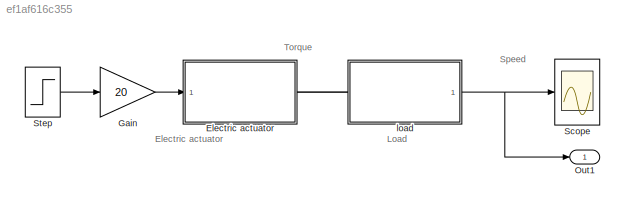
MODEL slx_ef1af616c355
KIND model
CONFIG AbsTol = auto
CONFIG EnableMultiTasking = off
CONFIG FixedStep = auto
CONFIG MaxStep = auto
CONFIG MinStep = auto
CONFIG RelTol = 1e-3
CONFIG SampleTimeConstraint = Unconstrained
CONFIG SolverName = VariableStepAuto
CONFIG StartTime = 0.0
CONFIG StopTime = 0.3
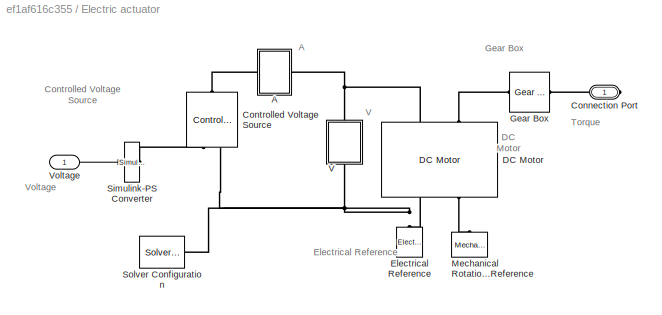
BLOCK [SubSystem] Electric actuator
  Ports = [1, 0, 0, 0, 0, 0, 1]
  RequestExecContextInheritance = off
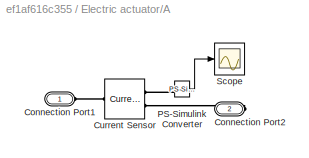
BLOCK [SubSystem] Electric actuator/A
  Ports = [0, 0, 0, 0, 0, 1, 1]
  RequestExecContextInheritance = off
  Tag = A
BLOCK [PMIOPort] Electric actuator/A/Connection Port1
  Side = Left
BLOCK [PMIOPort] Electric actuator/A/Connection Port2
  NameLocation = top
  Port = 2
  Side = Right
BLOCK [Reference] Electric actuator/A/Current Sensor  REF=fl_lib/Electrical/Electrical Sensors/Current Sensor
  Ports = [0, 0, 0, 0, 0, 1, 2]
  SourceBlock = fl_lib/Electrical/Electrical Sensors/Current Sensor
  SourceProductBaseCode = SS
  SourceType = Current Sensor
BLOCK [Reference] Electric actuator/A/PS-Simulink Converter  REF=nesl_utility/PS-Simulink
Converter
  Ports = [0, 1, 0, 0, 0, 1]
  SourceBlock = nesl_utility/PS-Simulink\nConverter
  SourceProductBaseCode = PW,SS
  SourceType = PS-Simulink\nConverter
BLOCK [Scope] Electric actuator/A/Scope
  Floating = off
  NumInputPorts = 1
  Ports = [1]
  ScopeSpecificationString = Simulink.scopes.TimeScopeBlockCfg('CurrentConfiguration', extmgr.ConfigurationSet(extmgr.Configuration('Core','General UI',true),extmgr.Configuration('Core','Source UI',true),extmgr.Configuration('Sources','WiredSimulink',true),extmgr.Configuration('Visuals','Time Domain',true,'SerializedDisplays',{struct('MinYLimReal','-0.28106','MaxYLimReal','2.49428','YLabelReal','','MinYLimMag','0.00000','MaxY...<+1412ch>
BLOCK [PMIOPort] Electric actuator/Connection Port
  NameLocation = top
  Side = Right
BLOCK [Reference] Electric actuator/Controlled Voltage Source  REF=fl_lib/Electrical/Electrical Sources/Controlled Voltage
Source
  NameLocation = right
  Ports = [0, 0, 0, 0, 0, 1, 2]
  SourceBlock = fl_lib/Electrical/Electrical Sources/Controlled Voltage\nSource
  SourceProductBaseCode = SS
  SourceType = Controlled Voltage\nSource
BLOCK [Reference] Electric actuator/DC Motor  REF=ee_lib/Electromechanical/Brushed Motors/DC Motor
  NameLocation = right
  Ports = [0, 0, 0, 0, 0, 2, 2]
  SourceBlock = ee_lib/Electromechanical/Brushed Motors/DC Motor
  SourceProductBaseCode = PS
  SourceType = DC Motor
BLOCK [Reference] Electric actuator/Electrical Reference  REF=fl_lib/Electrical/Electrical Elements/Electrical Reference
  NameLocation = right
  Ports = [0, 0, 0, 0, 0, 1]
  SourceBlock = fl_lib/Electrical/Electrical Elements/Electrical Reference
  SourceProductBaseCode = SS
  SourceType = Electrical Reference
BLOCK [Reference] Electric actuator/Gear Box  REF=fl_lib/Mechanical/Mechanisms/Gear Box
  Ports = [0, 0, 0, 0, 0, 1, 1]
  SourceBlock = fl_lib/Mechanical/Mechanisms/Gear Box
  SourceProductBaseCode = SS
  SourceType = Gear Box
BLOCK [Reference] Electric actuator/Mechanical Rotational Reference  REF=fl_lib/Mechanical/Rotational Elements/Mechanical
Rotational Reference
  NameLocation = right
  Ports = [0, 0, 0, 0, 0, 1]
  SourceBlock = fl_lib/Mechanical/Rotational Elements/Mechanical\nRotational Reference
  SourceProductBaseCode = SS
  SourceType = Mechanical\nRotational Reference
BLOCK [Reference] Electric actuator/Simulink-PS Converter  REF=nesl_utility/Simulink-PS
Converter
  Ports = [1, 0, 0, 0, 0, 0, 1]
  SourceBlock = nesl_utility/Simulink-PS\nConverter
  SourceProductBaseCode = PW,SS
  SourceType = Simulink-PS\nConverter
BLOCK [Reference] Electric actuator/Solver Configuration  REF=nesl_utility/Solver
Configuration
  Ports = [0, 0, 0, 0, 0, 0, 1]
  SourceBlock = nesl_utility/Solver\nConfiguration
  SourceProductBaseCode = PW,SS
  SourceType = Solver\nConfiguration
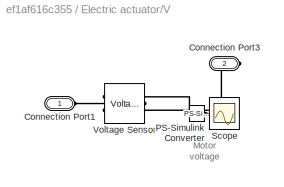
BLOCK [SubSystem] Electric actuator/V
  NameLocation = left
  Ports = [0, 0, 0, 0, 0, 1, 1]
  RequestExecContextInheritance = off
BLOCK [PMIOPort] Electric actuator/V/Connection Port1
  Side = Left
BLOCK [PMIOPort] Electric actuator/V/Connection Port3
  NameLocation = top
  Port = 2
  Side = Right
BLOCK [Reference] Electric actuator/V/PS-Simulink Converter  REF=nesl_utility/PS-Simulink
Converter
  Ports = [0, 1, 0, 0, 0, 1]
  SourceBlock = nesl_utility/PS-Simulink\nConverter
  SourceProductBaseCode = PW,SS
  SourceType = PS-Simulink\nConverter
BLOCK [Scope] Electric actuator/V/Scope
  Floating = off
  NumInputPorts = 1
  Ports = [1]
  ScopeSpecificationString = Simulink.scopes.TimeScopeBlockCfg('CurrentConfiguration', extmgr.ConfigurationSet(extmgr.Configuration('Core','General UI',true),extmgr.Configuration('Core','Source UI',true),extmgr.Configuration('Sources','WiredSimulink',true,'DataLoggingVariableName','ScopeData1'),extmgr.Configuration('Visuals','Time Domain',true,'SerializedDisplays',{struct('MinYLimReal','10.00000','MaxYLimReal','30.00000','YLa...<+1440ch>
BLOCK [Reference] Electric actuator/V/Voltage Sensor  REF=fl_lib/Electrical/Electrical Sensors/Voltage Sensor
  NameLocation = top
  Ports = [0, 0, 0, 0, 0, 1, 2]
  SourceBlock = fl_lib/Electrical/Electrical Sensors/Voltage Sensor
  SourceProductBaseCode = SS
  SourceType = Voltage Sensor
BLOCK [Inport] Electric actuator/Voltage
BLOCK [Gain] Gain
  Gain = 20
BLOCK [Outport] Out1
BLOCK [Scope] Scope
  Floating = off
  NumInputPorts = 1
  Ports = [1]
  ScopeSpecificationString = Simulink.scopes.TimeScopeBlockCfg('CurrentConfiguration', extmgr.ConfigurationSet(extmgr.Configuration('Core','General UI',true,'FigureColor',[1 1 1]),extmgr.Configuration('Core','Source UI',true),extmgr.Configuration('Sources','WiredSimulink',true,'DataLoggingVariableName','ScopeData1'),extmgr.Configuration('Visuals','Time Domain',true,'SerializedDisplays',{struct('MinYLimReal','-7.80414','MaxYLi...<+1543ch>
BLOCK [Step] Step
  SampleTime = 0
  Time = 0
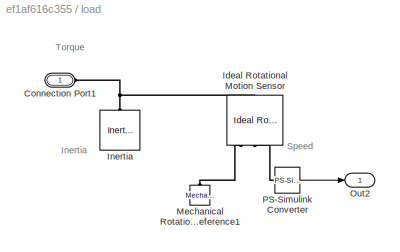
BLOCK [SubSystem] load
  Ports = [0, 1, 0, 0, 0, 1]
  RequestExecContextInheritance = off
BLOCK [PMIOPort] load/Connection Port1
  Side = Left
BLOCK [Reference] load/Ideal Rotational Motion Sensor  REF=fl_lib/Mechanical/Mechanical Sensors/Ideal Rotational
Motion Sensor
  NameLocation = left
  Ports = [0, 0, 0, 0, 0, 1, 3]
  SourceBlock = fl_lib/Mechanical/Mechanical Sensors/Ideal Rotational\nMotion Sensor
  SourceProductBaseCode = SS
  SourceType = Ideal Rotational\nMotion Sensor
BLOCK [Reference] load/Inertia  REF=fl_lib/Mechanical/Rotational Elements/Inertia
  NameLocation = right
  Ports = [0, 0, 0, 0, 0, 1]
  SourceBlock = fl_lib/Mechanical/Rotational Elements/Inertia
  SourceProductBaseCode = SS
  SourceType = Inertia
BLOCK [Reference] load/Mechanical Rotational Reference1  REF=fl_lib/Mechanical/Rotational Elements/Mechanical
Rotational Reference
  Ports = [0, 0, 0, 0, 0, 1]
  SourceBlock = fl_lib/Mechanical/Rotational Elements/Mechanical\nRotational Reference
  SourceProductBaseCode = SS
  SourceType = Mechanical\nRotational Reference
BLOCK [Outport] load/Out2
  NameLocation = top
BLOCK [Reference] load/PS-Simulink Converter  REF=nesl_utility/PS-Simulink
Converter
  Ports = [0, 1, 0, 0, 0, 1]
  SourceBlock = nesl_utility/PS-Simulink\nConverter
  SourceProductBaseCode = PW,SS
  SourceType = PS-Simulink\nConverter
ANNOTATION (root): Load
ANNOTATION (root): Torque
ANNOTATION (root): Electric actuator
ANNOTATION (root): Speed
ANNOTATION Electric actuator: A
ANNOTATION Electric actuator: DC Motor
ANNOTATION Electric actuator: Controlled Voltage Source
ANNOTATION Electric actuator: Gear Box
ANNOTATION Electric actuator: Voltage
ANNOTATION Electric actuator: V
ANNOTATION Electric actuator: Electrical Reference
ANNOTATION Electric actuator: Torque
ANNOTATION Electric actuator/V: Motor voltage
ANNOTATION load: Speed
ANNOTATION load: Torque
ANNOTATION load: Inertia
LINE Electric actuator/A/PS-Simulink Converter:1 -> Electric actuator/A/Scope:1
LINE Electric actuator/V/PS-Simulink Converter:1 -> Electric actuator/V/Scope:1
LINE Electric actuator/Voltage:1 -> Electric actuator/Simulink-PS Converter:1
LINE Gain:1 -> Electric actuator:1
LINE Step:1 -> Gain:1
LINE load/PS-Simulink Converter:1 -> load/Out2:1
NET load:1 -> Out1:1, Scope:1
PLINE Electric actuator/A/Connection Port1:RConn1 -- Electric actuator/A/Current Sensor:LConn1
PLINE Electric actuator/A/Connection Port2:RConn1 -- Electric actuator/A/Current Sensor:RConn2
PLINE Electric actuator/A/Current Sensor:RConn1 -- Electric actuator/A/PS-Simulink Converter:LConn1
PLINE Electric actuator/A:LConn1 -- Electric actuator/Controlled Voltage Source:LConn1
PNET net1: Electric actuator/A:RConn1 -- Electric actuator/DC Motor:LConn1 -- Electric actuator/V:LConn1
PLINE Electric actuator/Connection Port:RConn1 -- Electric actuator/Gear Box:RConn1
PLINE Electric actuator/Controlled Voltage Source:RConn1 -- Electric actuator/Simulink-PS Converter:RConn1
PNET net2: Electric actuator/Controlled Voltage Source:RConn2 -- Electric actuator/DC Motor:RConn1 -- Electric actuator/Electrical Reference:LConn1 -- Electric actuator/Solver Configuration:RConn1 -- Electric actuator/V:RConn1
PLINE Electric actuator/DC Motor:LConn2 -- Electric actuator/Gear Box:LConn1
PLINE Electric actuator/DC Motor:RConn2 -- Electric actuator/Mechanical Rotational Reference:LConn1
PLINE Electric actuator/V/Connection Port1:RConn1 -- Electric actuator/V/Voltage Sensor:LConn1
PLINE Electric actuator/V/Connection Port3:RConn1 -- Electric actuator/V/Voltage Sensor:RConn2
PLINE Electric actuator/V/PS-Simulink Converter:LConn1 -- Electric actuator/V/Voltage Sensor:RConn1
PLINE Electric actuator:RConn1 -- load:LConn1
PNET net3: load/Connection Port1:RConn1 -- load/Ideal Rotational Motion Sensor:LConn1 -- load/Inertia:LConn1
PLINE load/Ideal Rotational Motion Sensor:RConn1 -- load/Mechanical Rotational Reference1:LConn1
PLINE load/Ideal Rotational Motion Sensor:RConn2 -- load/PS-Simulink Converter:LConn1
note: NET lines group one-source signal fan-out (src -> all destinations, sorted); 1:1 wires keep LINE; PNET lines group multi-terminal physical nets as a canonical sorted terminal list (undirected conserving connections); 2-terminal nets keep the pairwise PLINE form
